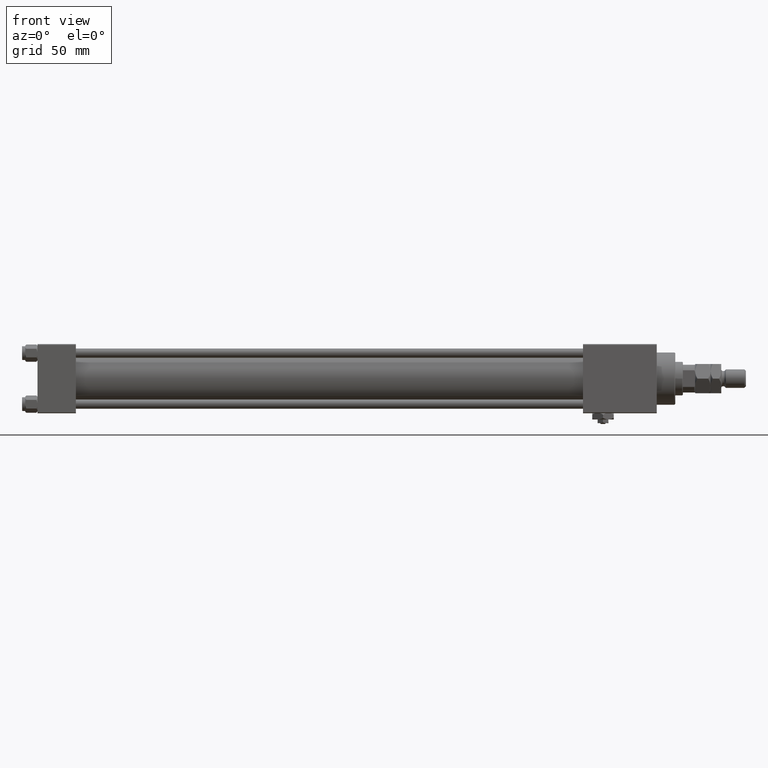
[diagram: clean part render]
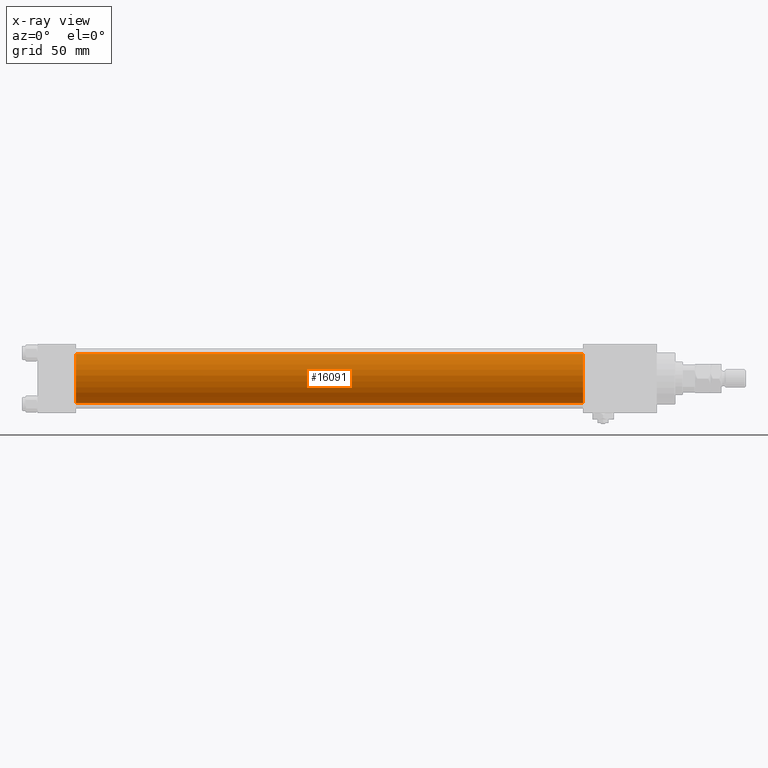
[diagram: x-ray — body ghosted, one internal face saturated and labeled with its STEP entity id]
A machine part, front view, then the same camera in x-ray: the body is ghosted and one INTERNAL B-rep face — a face not visible from any outside direction — is saturated and labeled: STEP entity #16091.
In plain terms, the highlighted cylindrical surface (edge-blend (fillet) strip) has radius 16 mm, axis along (-1, -0, -0).
Its self-contained STEP definition (entity closure, byte-faithful):
#491 = CARTESIAN_POINT ( 'NONE',  ( 25.00000000000000000, -6.426503353294456087E-16, -16.00000000000000000 ) ) ;
#819 = CYLINDRICAL_SURFACE ( 'NONE', #51007, 16.00000000000000000 ) ;
#3103 = ORIENTED_EDGE ( 'NONE', *, *, #49040, .F. ) ;
#4164 = LINE ( 'NONE', #15812, #26656 ) ;
#5535 = DIRECTION ( 'NONE',  ( 0.000000000000000000, 0.000000000000000000, -1.000000000000000000 ) ) ;
#5978 = ORIENTED_EDGE ( 'NONE', *, *, #7508, .T. ) ;
#7169 = ORIENTED_EDGE ( 'NONE', *, *, #30808, .F. ) ;
#7508 = EDGE_CURVE ( 'NONE', #26711, #20565, #4164, .T. ) ;
#7738 = CARTESIAN_POINT ( 'NONE',  ( 25.00000000000000000, -2.602085213965210642E-15, 16.00000000000000000 ) ) ;
#9200 = CARTESIAN_POINT ( 'NONE',  ( 355.0000000000000568, -2.602085213965210642E-15, 0.000000000000000000 ) ) ;
#9566 = VERTEX_POINT ( 'NONE', #13890 ) ;
#10808 = CARTESIAN_POINT ( 'NONE',  ( 355.0000000000000568, -2.602085213965210642E-15, 16.00000000000000000 ) ) ;
#12990 = FACE_OUTER_BOUND ( 'NONE', #25946, .T. ) ;
#13890 = CARTESIAN_POINT ( 'NONE',  ( 355.0000000000000568, -2.602085213965210642E-15, 16.00000000000000000 ) ) ;
#14384 = CIRCLE ( 'NONE', #40255, 16.00000000000000000 ) ;
#15497 = VECTOR ( 'NONE', #39974, 1000.000000000000000 ) ;
#15812 = CARTESIAN_POINT ( 'NONE',  ( 355.0000000000000568, -6.426503353294456087E-16, -16.00000000000000000 ) ) ;
#16091 = ADVANCED_FACE ( 'NONE', ( #12990 ), #819, .F. ) ;
#17667 = CIRCLE ( 'NONE', #24568, 16.00000000000000000 ) ;
#17750 = CARTESIAN_POINT ( 'NONE',  ( 355.0000000000000568, -6.426503353294456087E-16, -16.00000000000000000 ) ) ;
#18248 = CARTESIAN_POINT ( 'NONE',  ( 355.0000000000000568, -2.602085213965210642E-15, 0.000000000000000000 ) ) ;
#20565 = VERTEX_POINT ( 'NONE', #491 ) ;
#24568 = AXIS2_PLACEMENT_3D ( 'NONE', #48641, #39997, #52429 ) ;
#24629 = DIRECTION ( 'NONE',  ( -1.000000000000000000, -0.000000000000000000, -0.000000000000000000 ) ) ;
#25946 = EDGE_LOOP ( 'NONE', ( #42944, #5978, #7169, #3103 ) ) ;
#26656 = VECTOR ( 'NONE', #28490, 1000.000000000000000 ) ;
#26711 = VERTEX_POINT ( 'NONE', #17750 ) ;
#28490 = DIRECTION ( 'NONE',  ( -1.000000000000000000, -0.000000000000000000, -0.000000000000000000 ) ) ;
#30808 = EDGE_CURVE ( 'NONE', #34851, #20565, #17667, .T. ) ;
#34724 = DIRECTION ( 'NONE',  ( 1.000000000000000000, 0.000000000000000000, 0.000000000000000000 ) ) ;
#34851 = VERTEX_POINT ( 'NONE', #7738 ) ;
#35924 = LINE ( 'NONE', #10808, #15497 ) ;
#38334 = EDGE_CURVE ( 'NONE', #9566, #26711, #14384, .T. ) ;
#39974 = DIRECTION ( 'NONE',  ( -1.000000000000000000, -0.000000000000000000, -0.000000000000000000 ) ) ;
#39997 = DIRECTION ( 'NONE',  ( 1.000000000000000000, 0.000000000000000000, 0.000000000000000000 ) ) ;
#40255 = AXIS2_PLACEMENT_3D ( 'NONE', #18248, #34724, #5535 ) ;
#41113 = DIRECTION ( 'NONE',  ( 0.000000000000000000, 0.000000000000000000, 1.000000000000000000 ) ) ;
#42944 = ORIENTED_EDGE ( 'NONE', *, *, #38334, .T. ) ;
#48641 = CARTESIAN_POINT ( 'NONE',  ( 25.00000000000000000, -2.602085213965210642E-15, 0.000000000000000000 ) ) ;
#49040 = EDGE_CURVE ( 'NONE', #9566, #34851, #35924, .T. ) ;
#51007 = AXIS2_PLACEMENT_3D ( 'NONE', #9200, #24629, #41113 ) ;
#52429 = DIRECTION ( 'NONE',  ( 0.000000000000000000, 0.000000000000000000, -1.000000000000000000 ) ) ;